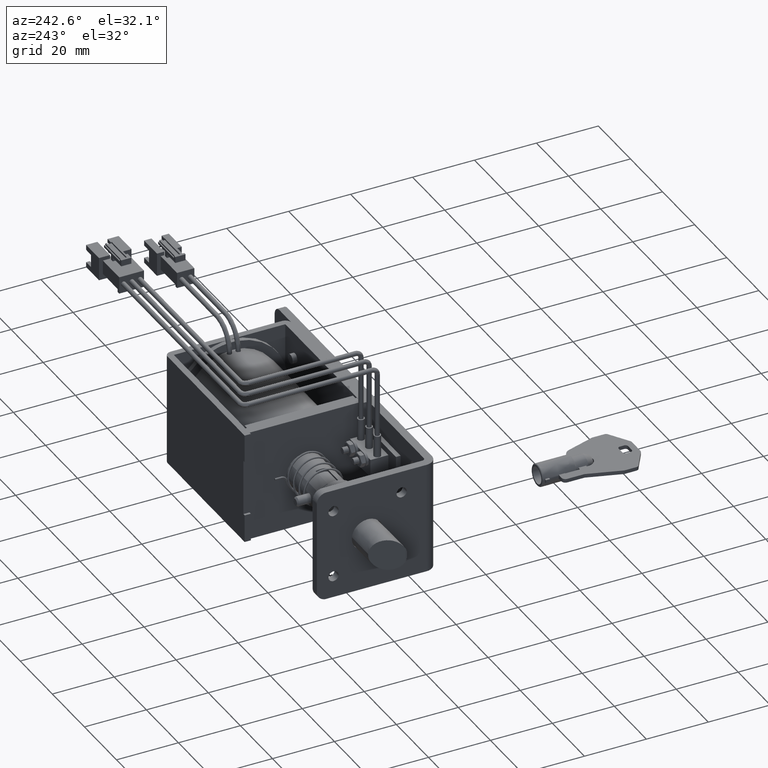
[diagram: clean part render]
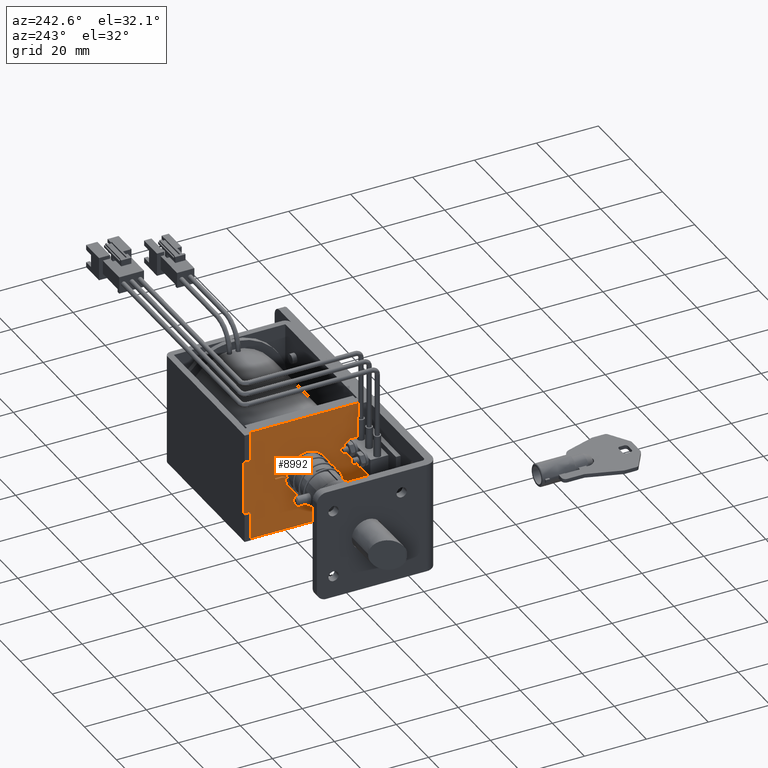
[diagram: same view with one face highlighted and labeled with its STEP entity id]
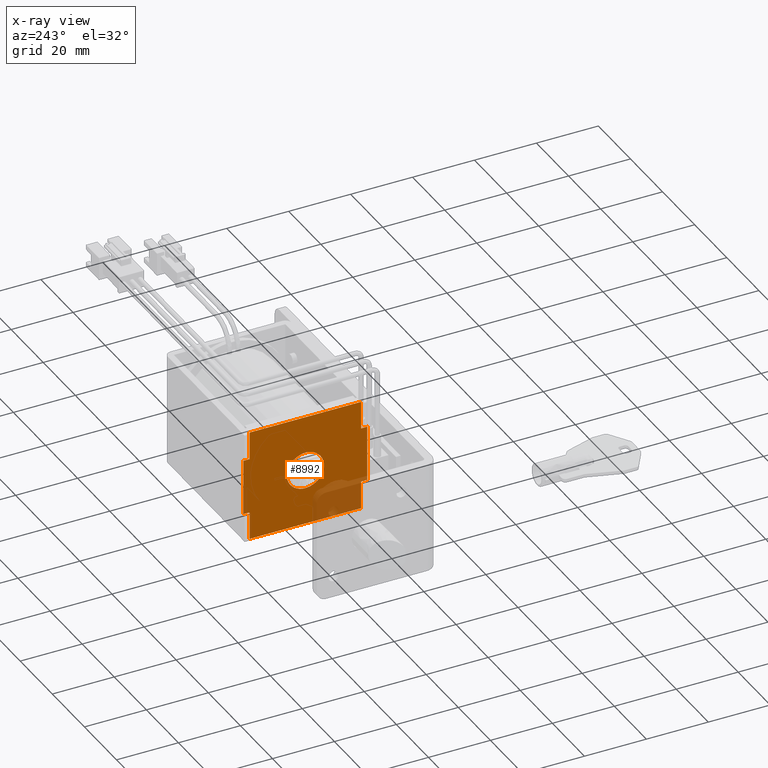
[diagram: x-ray of the same camera — body ghosted, the highlighted face saturated]
A machine part, auxiliary view. The second image highlights one B-rep face of the part: STEP entity #8992.
The next image is the same camera in x-ray: the body ghosted, the highlighted face saturated — about 14% of this face is hidden behind the body in this view.
In plain terms, the highlighted face is a freeform B-spline surface patch.
Its self-contained STEP definition (entity closure, byte-faithful):
#8715=CARTESIAN_POINT('',(10.299999999999599,17.779484451077280,12.427517691788969));
#8716=VERTEX_POINT('',#8715);
#8717=CARTESIAN_POINT('',(10.299999999999599,22.600000000000001,21.999999999998650));
#8718=VERTEX_POINT('',#8717);
#8719=CARTESIAN_POINT('',(10.299999999999599,17.779484451077284,12.427517691788978));
#8720=CARTESIAN_POINT('',(10.299999999999599,16.600000000007562,14.019050594001836));
#8721=CARTESIAN_POINT('',(10.299999999999599,16.600000000006201,16.000000000003240));
#8722=CARTESIAN_POINT('',(10.299999999999599,16.600000000002080,22.000000000000188));
#8723=CARTESIAN_POINT('',(10.299999999999599,22.600000000000001,21.999999999998650));
#8731=(BOUNDED_CURVE()B_SPLINE_CURVE(2,(#8719,#8720,#8721,#8722,#8723),.UNSPECIFIED.,.F.,.U.)B_SPLINE_CURVE_WITH_KNOTS((3,2,3),(0.147314321373653,0.250000000000000,0.500000000000000),.UNSPECIFIED.)CURVE()GEOMETRIC_REPRESENTATION_ITEM()RATIONAL_B_SPLINE_CURVE((0.858220270897228,0.879696244244341,1.0,0.707106781186548,1.0))REPRESENTATION_ITEM(''));
#8732=EDGE_CURVE('',#8716,#8718,#8731,.T.);
#8734=CARTESIAN_POINT('',(10.299999999999599,27.420515548922719,19.572482308208329));
#8735=VERTEX_POINT('',#8734);
#8736=CARTESIAN_POINT('',(10.299999999999599,22.600000000000001,21.999999999998650));
#8737=CARTESIAN_POINT('',(10.299999999999599,25.621483076413991,21.999999999995602));
#8738=CARTESIAN_POINT('',(10.299999999999599,27.420515548922726,19.572482308208333));
#8746=(BOUNDED_CURVE()B_SPLINE_CURVE(2,(#8736,#8737,#8738),.UNSPECIFIED.,.F.,.U.)B_SPLINE_CURVE_WITH_KNOTS((3,3),(0.500000000000000,0.647314321373653),.UNSPECIFIED.)CURVE()GEOMETRIC_REPRESENTATION_ITEM()RATIONAL_B_SPLINE_CURVE((1.0,0.827410536942206,0.858220270897228))REPRESENTATION_ITEM(''));
#8747=EDGE_CURVE('',#8718,#8735,#8746,.T.);
#8791=CARTESIAN_POINT('',(10.299999999999599,22.600000000000001,9.999999999998650));
#8792=VERTEX_POINT('',#8791);
#8793=CARTESIAN_POINT('',(10.299999999999599,22.600000000000001,9.999999999998650));
#8794=CARTESIAN_POINT('',(10.299999999999599,19.578516923586012,10.000000000001704));
#8795=CARTESIAN_POINT('',(10.299999999999599,17.779484451077284,12.427517691788978));
#8803=(BOUNDED_CURVE()B_SPLINE_CURVE(2,(#8793,#8794,#8795),.UNSPECIFIED.,.F.,.U.)B_SPLINE_CURVE_WITH_KNOTS((3,3),(0.0,0.147314321373653),.UNSPECIFIED.)CURVE()GEOMETRIC_REPRESENTATION_ITEM()RATIONAL_B_SPLINE_CURVE((1.0,0.827410536942206,0.858220270897228))REPRESENTATION_ITEM(''));
#8804=EDGE_CURVE('',#8792,#8716,#8803,.T.);
#8813=CARTESIAN_POINT('',(10.299999999999599,27.420515548922726,19.572482308208333));
#8814=CARTESIAN_POINT('',(10.299999999999599,28.599999999992448,17.980949405995464));
#8815=CARTESIAN_POINT('',(10.299999999999599,28.599999999993809,15.999999999994049));
#8816=CARTESIAN_POINT('',(10.299999999999599,28.599999999997937,9.999999999997110));
#8817=CARTESIAN_POINT('',(10.299999999999599,22.600000000000001,9.999999999998650));
#8825=(BOUNDED_CURVE()B_SPLINE_CURVE(2,(#8813,#8814,#8815,#8816,#8817),.UNSPECIFIED.,.F.,.U.)B_SPLINE_CURVE_WITH_KNOTS((3,2,3),(0.647314321373653,0.750000000000000,1.0),.UNSPECIFIED.)CURVE()GEOMETRIC_REPRESENTATION_ITEM()RATIONAL_B_SPLINE_CURVE((0.858220270897228,0.879696244244341,1.0,0.707106781186548,1.0))REPRESENTATION_ITEM(''));
#8826=EDGE_CURVE('',#8735,#8792,#8825,.T.);
#8895=CARTESIAN_POINT('',(10.299999999999599,0.602000077527745,-3.787200930266581));
#8896=CARTESIAN_POINT('',(10.299999999999599,44.598000995355378,-3.787200930266581));
#8897=CARTESIAN_POINT('',(10.299999999999599,0.602000077527745,35.787201895322710));
#8898=CARTESIAN_POINT('',(10.299999999999599,44.598000995355378,35.787201895322710));
#8899=B_SPLINE_SURFACE_WITH_KNOTS('',1,1,((#8895,#8897),(#8896,#8898)),.UNSPECIFIED.,.F.,.F.,.U.,(2,2),(2,2),(0.0,43.996000917827629),(0.0,39.574402825589289),.UNSPECIFIED.);
#8900=CARTESIAN_POINT('',(10.299999999999640,42.599999999999547,25.0));
#8901=VERTEX_POINT('',#8900);
#8902=CARTESIAN_POINT('',(10.299999999999640,42.599999999999547,6.999999999999570));
#8903=VERTEX_POINT('',#8902);
#8904=CARTESIAN_POINT('',(10.299999999999640,42.599999999999547,25.0));
#8905=CARTESIAN_POINT('',(10.299999999999640,42.599999999999547,6.999999999999570));
#8906=QUASI_UNIFORM_CURVE('',1,(#8904,#8905),.UNSPECIFIED.,.F.,.U.);
#8907=EDGE_CURVE('',#8901,#8903,#8906,.T.);
#8908=ORIENTED_EDGE('',*,*,#8907,.T.);
#8909=CARTESIAN_POINT('',(10.299999999999640,40.599999999999497,6.999999999999570));
#8910=VERTEX_POINT('',#8909);
#8911=CARTESIAN_POINT('',(10.299999999999640,42.599999999999547,6.999999999999570));
#8912=CARTESIAN_POINT('',(10.299999999999640,40.599999999999497,6.999999999999570));
#8913=QUASI_UNIFORM_CURVE('',1,(#8911,#8912),.UNSPECIFIED.,.F.,.U.);
#8914=EDGE_CURVE('',#8903,#8910,#8913,.T.);
#8915=ORIENTED_EDGE('',*,*,#8914,.T.);
#8916=CARTESIAN_POINT('',(10.299999999999640,40.599999999999497,-1.990000000002670));
#8917=VERTEX_POINT('',#8916);
#8918=CARTESIAN_POINT('',(10.299999999999640,40.599999999999497,6.999999999999570));
#8919=CARTESIAN_POINT('',(10.299999999999640,40.599999999999497,-1.990000000002670));
#8920=QUASI_UNIFORM_CURVE('',1,(#8918,#8919),.UNSPECIFIED.,.F.,.U.);
#8921=EDGE_CURVE('',#8910,#8917,#8920,.T.);
#8922=ORIENTED_EDGE('',*,*,#8921,.T.);
#8923=CARTESIAN_POINT('',(10.299999999999621,4.600000000000360,-1.990000000002600));
#8924=VERTEX_POINT('',#8923);
#8925=CARTESIAN_POINT('',(10.299999999999640,40.599999999999497,-1.990000000002670));
#8926=CARTESIAN_POINT('',(10.299999999999621,4.600000000000360,-1.990000000002600));
#8927=QUASI_UNIFORM_CURVE('',1,(#8925,#8926),.UNSPECIFIED.,.F.,.U.);
#8928=EDGE_CURVE('',#8917,#8924,#8927,.T.);
#8929=ORIENTED_EDGE('',*,*,#8928,.T.);
#8930=CARTESIAN_POINT('',(10.299999999999621,4.600000000000360,7.0));
#8931=VERTEX_POINT('',#8930);
#8932=CARTESIAN_POINT('',(10.299999999999621,4.600000000000360,-1.990000000002600));
#8933=CARTESIAN_POINT('',(10.299999999999621,4.600000000000360,7.0));
#8934=QUASI_UNIFORM_CURVE('',1,(#8932,#8933),.UNSPECIFIED.,.F.,.U.);
#8935=EDGE_CURVE('',#8924,#8931,#8934,.T.);
#8936=ORIENTED_EDGE('',*,*,#8935,.T.);
#8937=CARTESIAN_POINT('',(10.299999999999599,2.599999999999965,7.0));
#8938=VERTEX_POINT('',#8937);
#8939=CARTESIAN_POINT('',(10.299999999999621,4.600000000000360,7.0));
#8940=CARTESIAN_POINT('',(10.299999999999599,2.599999999999965,7.0));
#8941=QUASI_UNIFORM_CURVE('',1,(#8939,#8940),.UNSPECIFIED.,.F.,.U.);
#8942=EDGE_CURVE('',#8931,#8938,#8941,.T.);
#8943=ORIENTED_EDGE('',*,*,#8942,.T.);
#8944=CARTESIAN_POINT('',(10.299999999999599,2.599999999999965,25.0));
#8945=VERTEX_POINT('',#8944);
#8946=CARTESIAN_POINT('',(10.299999999999599,2.599999999999965,7.0));
#8947=CARTESIAN_POINT('',(10.299999999999599,2.599999999999965,25.0));
#8948=QUASI_UNIFORM_CURVE('',1,(#8946,#8947),.UNSPECIFIED.,.F.,.U.);
#8949=EDGE_CURVE('',#8938,#8945,#8948,.T.);
#8950=ORIENTED_EDGE('',*,*,#8949,.T.);
#8951=CARTESIAN_POINT('',(10.299999999999621,4.600000000000360,25.0));
#8952=VERTEX_POINT('',#8951);
#8953=CARTESIAN_POINT('',(10.299999999999599,2.599999999999965,25.0));
#8954=CARTESIAN_POINT('',(10.299999999999621,4.600000000000360,25.0));
#8955=QUASI_UNIFORM_CURVE('',1,(#8953,#8954),.UNSPECIFIED.,.F.,.U.);
#8956=EDGE_CURVE('',#8945,#8952,#8955,.T.);
#8957=ORIENTED_EDGE('',*,*,#8956,.T.);
#8958=CARTESIAN_POINT('',(10.299999999999621,4.600000000000360,33.990000000000002));
#8959=VERTEX_POINT('',#8958);
#8960=CARTESIAN_POINT('',(10.299999999999621,4.600000000000360,25.0));
#8961=CARTESIAN_POINT('',(10.299999999999621,4.600000000000360,33.990000000000002));
#8962=QUASI_UNIFORM_CURVE('',1,(#8960,#8961),.UNSPECIFIED.,.F.,.U.);
#8963=EDGE_CURVE('',#8952,#8959,#8962,.T.);
#8964=ORIENTED_EDGE('',*,*,#8963,.T.);
#8965=CARTESIAN_POINT('',(10.299999999999640,40.599999999999497,33.990000000000002));
#8966=VERTEX_POINT('',#8965);
#8967=CARTESIAN_POINT('',(10.299999999999621,4.600000000000360,33.990000000000002));
#8968=CARTESIAN_POINT('',(10.299999999999640,40.599999999999497,33.990000000000002));
#8969=QUASI_UNIFORM_CURVE('',1,(#8967,#8968),.UNSPECIFIED.,.F.,.U.);
#8970=EDGE_CURVE('',#8959,#8966,#8969,.T.);
#8971=ORIENTED_EDGE('',*,*,#8970,.T.);
#8972=CARTESIAN_POINT('',(10.299999999999599,40.599999999999497,25.0));
#8973=VERTEX_POINT('',#8972);
#8974=CARTESIAN_POINT('',(10.299999999999640,40.599999999999497,33.990000000000002));
#8975=CARTESIAN_POINT('',(10.299999999999599,40.599999999999497,25.0));
#8976=QUASI_UNIFORM_CURVE('',1,(#8974,#8975),.UNSPECIFIED.,.F.,.U.);
#8977=EDGE_CURVE('',#8966,#8973,#8976,.T.);
#8978=ORIENTED_EDGE('',*,*,#8977,.T.);
#8979=CARTESIAN_POINT('',(10.299999999999599,40.599999999999497,25.0));
#8980=CARTESIAN_POINT('',(10.299999999999640,42.599999999999547,25.0));
#8981=QUASI_UNIFORM_CURVE('',1,(#8979,#8980),.UNSPECIFIED.,.F.,.U.);
#8982=EDGE_CURVE('',#8973,#8901,#8981,.T.);
#8983=ORIENTED_EDGE('',*,*,#8982,.T.);
#8984=EDGE_LOOP('',(#8908,#8915,#8922,#8929,#8936,#8943,#8950,#8957,#8964,#8971,#8978,#8983));
#8985=FACE_OUTER_BOUND('',#8984,.T.);
#8986=ORIENTED_EDGE('',*,*,#8747,.F.);
#8987=ORIENTED_EDGE('',*,*,#8732,.F.);
#8988=ORIENTED_EDGE('',*,*,#8804,.F.);
#8989=ORIENTED_EDGE('',*,*,#8826,.F.);
#8990=EDGE_LOOP('',(#8986,#8987,#8988,#8989));
#8991=FACE_BOUND('',#8990,.T.);
#8992=ADVANCED_FACE('',(#8985,#8991),#8899,.F.);